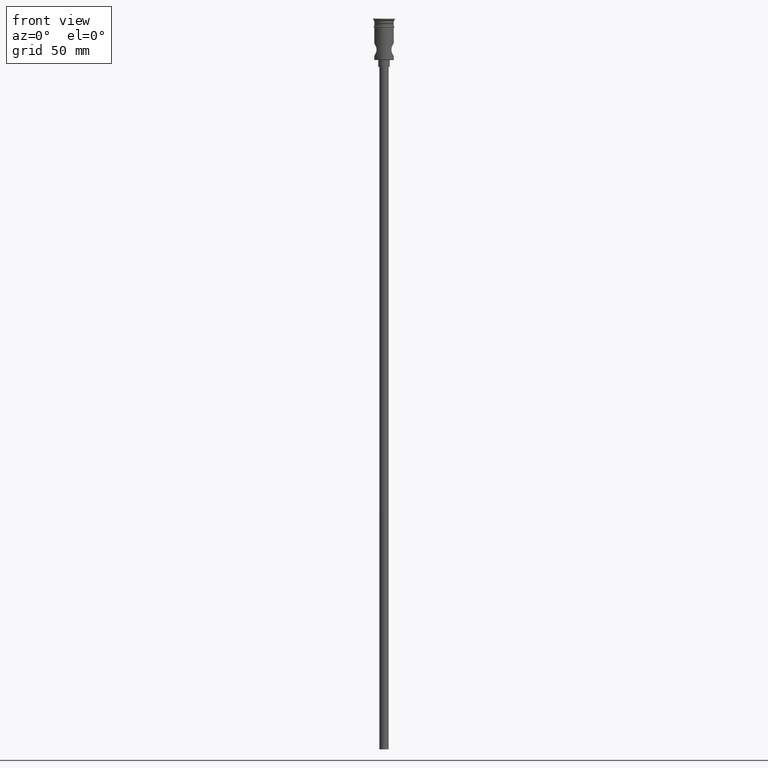
[diagram: clean part render]
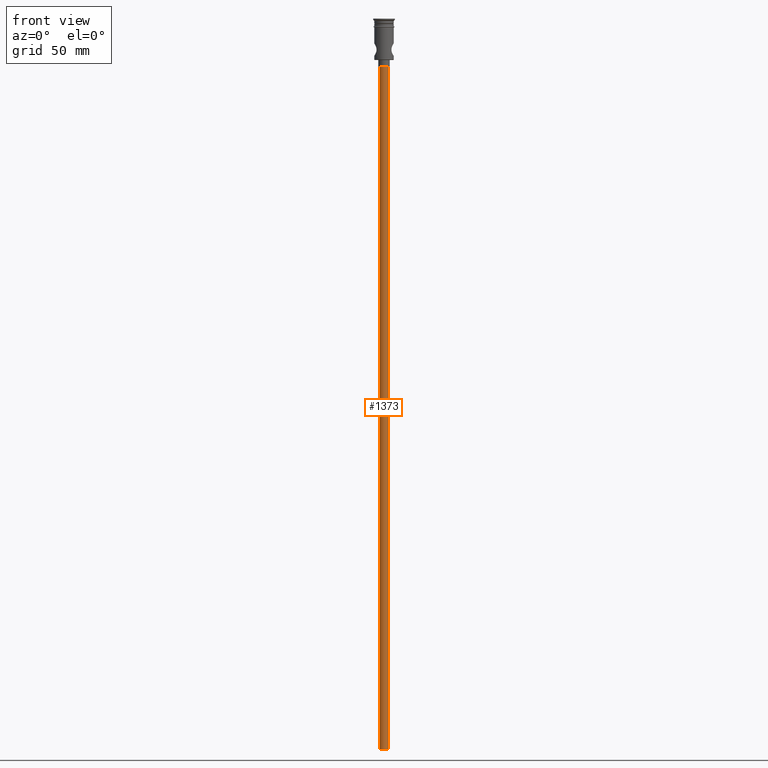
[diagram: same view with one face highlighted and labeled with its STEP entity id]
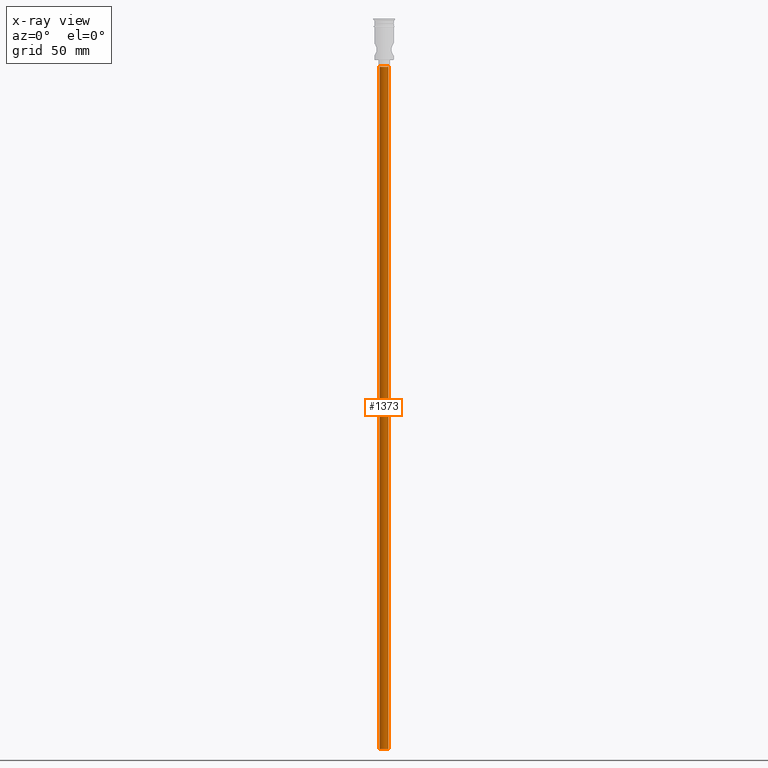
[diagram: x-ray of the same camera — body ghosted, the highlighted face saturated]
A machine part, front view. The second image highlights one B-rep face of the part: STEP entity #1373.
The next image is the same camera in x-ray: the body ghosted, the highlighted face saturated — about 0% of this face is hidden behind the body in this view.
In plain terms, the highlighted cylindrical surface (edge-blend (fillet) strip) has radius 2 mm, axis along (-0, -0, 1).
Its self-contained STEP definition (entity closure, byte-faithful):
#46 = DIRECTION ( 'NONE',  ( -1.000000000000000000, 0.000000000000000000, 0.000000000000000000 ) ) ;
#171 = CARTESIAN_POINT ( 'NONE',  ( 2.000000000000000000, 0.000000000000000000, -318.0000000000000000 ) ) ;
#184 = ORIENTED_EDGE ( 'NONE', *, *, #1069, .F. ) ;
#212 = FACE_OUTER_BOUND ( 'NONE', #316, .T. ) ;
#216 = LINE ( 'NONE', #527, #463 ) ;
#313 = EDGE_CURVE ( 'NONE', #1336, #431, #540, .T. ) ;
#316 = EDGE_LOOP ( 'NONE', ( #184, #1160, #1134, #722 ) ) ;
#359 = DIRECTION ( 'NONE',  ( 0.000000000000000000, 0.000000000000000000, -1.000000000000000000 ) ) ;
#416 = EDGE_CURVE ( 'NONE', #509, #919, #882, .T. ) ;
#431 = VERTEX_POINT ( 'NONE', #1349 ) ;
#463 = VECTOR ( 'NONE', #544, 1000.000000000000000 ) ;
#509 = VERTEX_POINT ( 'NONE', #171 ) ;
#527 = CARTESIAN_POINT ( 'NONE',  ( -2.000000000000000000, 2.449293598294706414E-16, -318.0000000000000000 ) ) ;
#540 = CIRCLE ( 'NONE', #1212, 2.000000000000000000 ) ;
#544 = DIRECTION ( 'NONE',  ( -0.000000000000000000, -0.000000000000000000, 1.000000000000000000 ) ) ;
#598 = LINE ( 'NONE', #1181, #637 ) ;
#637 = VECTOR ( 'NONE', #1174, 1000.000000000000000 ) ;
#677 = CARTESIAN_POINT ( 'NONE',  ( 0.000000000000000000, 0.000000000000000000, -318.0000000000000000 ) ) ;
#714 = CARTESIAN_POINT ( 'NONE',  ( -2.000000000000000000, 2.449293598294706414E-16, -318.0000000000000000 ) ) ;
#718 = CARTESIAN_POINT ( 'NONE',  ( 2.000000000000000000, 0.000000000000000000, -20.99999999999999645 ) ) ;
#722 = ORIENTED_EDGE ( 'NONE', *, *, #313, .T. ) ;
#750 = CYLINDRICAL_SURFACE ( 'NONE', #994, 2.000000000000000000 ) ;
#764 = DIRECTION ( 'NONE',  ( 1.000000000000000000, 0.000000000000000000, 0.000000000000000000 ) ) ;
#794 = DIRECTION ( 'NONE',  ( 0.000000000000000000, 0.000000000000000000, -1.000000000000000000 ) ) ;
#882 = CIRCLE ( 'NONE', #1042, 2.000000000000000000 ) ;
#919 = VERTEX_POINT ( 'NONE', #714 ) ;
#994 = AXIS2_PLACEMENT_3D ( 'NONE', #1313, #1437, #764 ) ;
#1042 = AXIS2_PLACEMENT_3D ( 'NONE', #677, #359, #1264 ) ;
#1046 = CARTESIAN_POINT ( 'NONE',  ( 0.000000000000000000, 0.000000000000000000, -20.99999999999999645 ) ) ;
#1069 = EDGE_CURVE ( 'NONE', #919, #431, #216, .T. ) ;
#1134 = ORIENTED_EDGE ( 'NONE', *, *, #1302, .T. ) ;
#1160 = ORIENTED_EDGE ( 'NONE', *, *, #416, .F. ) ;
#1174 = DIRECTION ( 'NONE',  ( -0.000000000000000000, -0.000000000000000000, 1.000000000000000000 ) ) ;
#1181 = CARTESIAN_POINT ( 'NONE',  ( 2.000000000000000000, 0.000000000000000000, -318.0000000000000000 ) ) ;
#1212 = AXIS2_PLACEMENT_3D ( 'NONE', #1046, #794, #46 ) ;
#1264 = DIRECTION ( 'NONE',  ( -1.000000000000000000, 0.000000000000000000, 0.000000000000000000 ) ) ;
#1302 = EDGE_CURVE ( 'NONE', #509, #1336, #598, .T. ) ;
#1313 = CARTESIAN_POINT ( 'NONE',  ( 0.000000000000000000, 0.000000000000000000, -318.0000000000000000 ) ) ;
#1336 = VERTEX_POINT ( 'NONE', #718 ) ;
#1349 = CARTESIAN_POINT ( 'NONE',  ( -2.000000000000000000, 2.449293598294706414E-16, -20.99999999999999645 ) ) ;
#1373 = ADVANCED_FACE ( 'NONE', ( #212 ), #750, .T. ) ;
#1437 = DIRECTION ( 'NONE',  ( -0.000000000000000000, -0.000000000000000000, 1.000000000000000000 ) ) ;